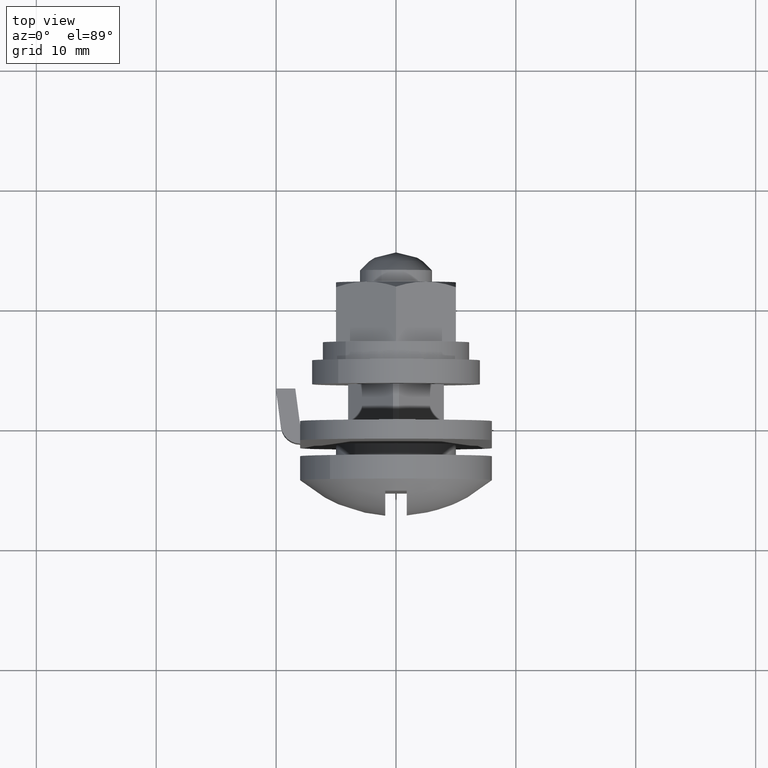
[diagram: clean part render]
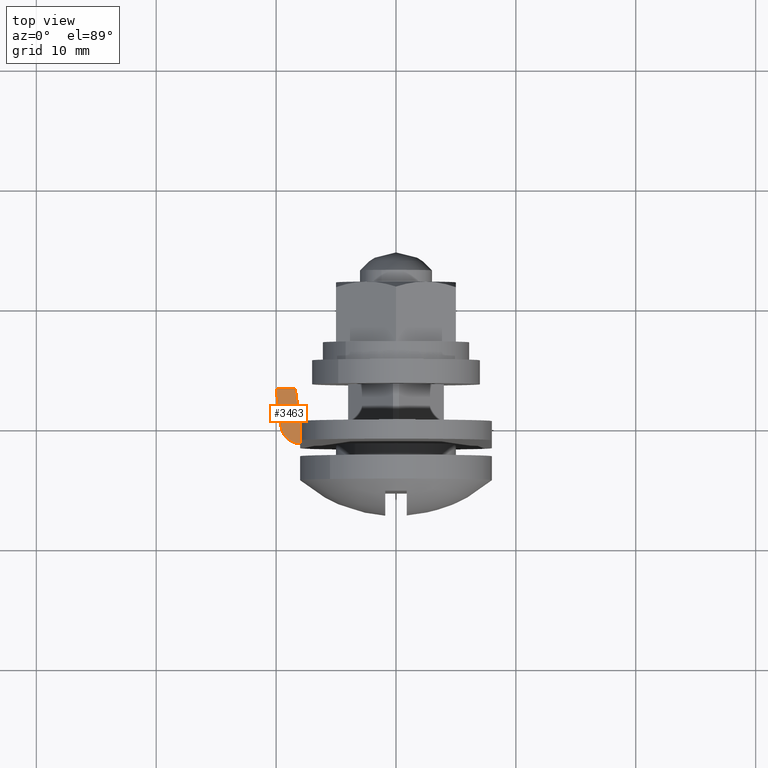
[diagram: same view with one face highlighted and labeled with its STEP entity id]
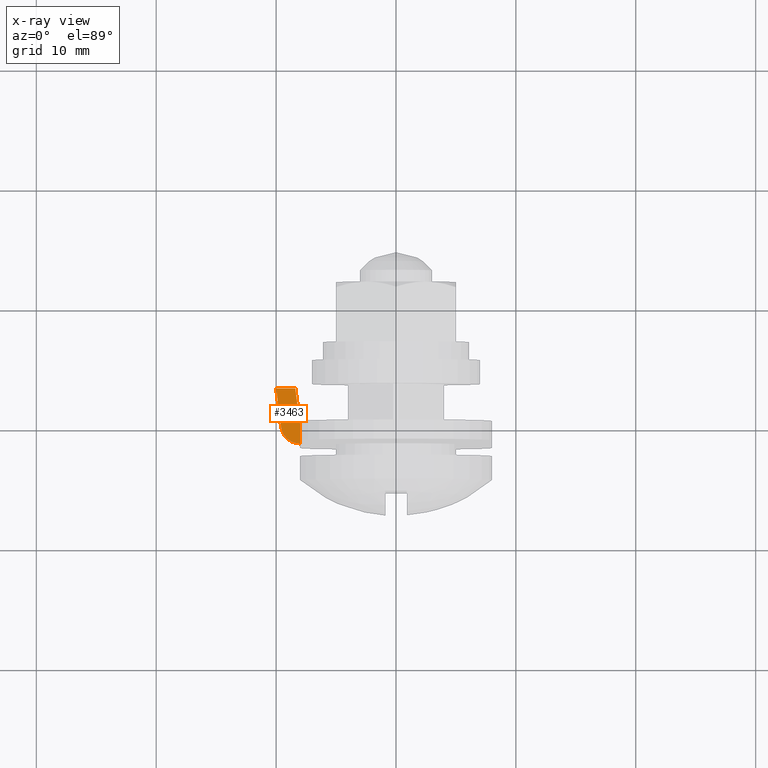
[diagram: x-ray of the same camera — body ghosted, the highlighted face saturated]
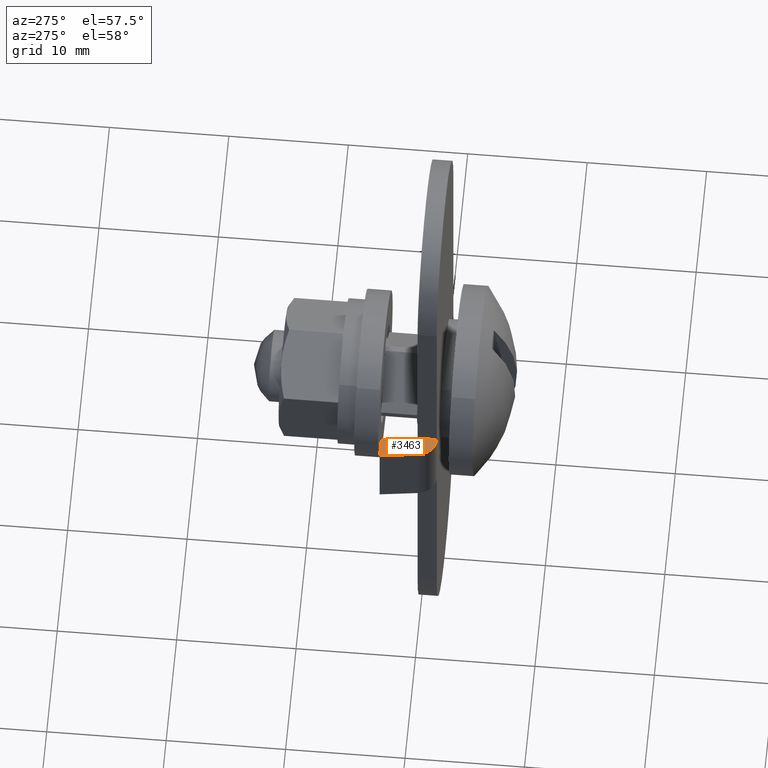
[diagram: same view with one face highlighted and labeled with its STEP entity id]
A machine part, top view. The second image highlights one B-rep face of the part: STEP entity #3463.
The next image is the same camera in x-ray: the body ghosted, the highlighted face saturated — about 0% of this face is hidden behind the body in this view.
A second angle (auxiliary view) of the same face is appended — the face is thin or edge-on in the first view.
In plain terms, the highlighted face is a freeform B-spline surface patch.
Its self-contained STEP definition (entity closure, byte-faithful):
#3414=CARTESIAN_POINT('',(-10.099899996123609,-1.829774278946591,3.0));
#3415=CARTESIAN_POINT('',(-7.900099950232208,-1.829774278946591,3.0));
#3416=CARTESIAN_POINT('',(-10.099899996123609,3.229770318455473,3.0));
#3417=CARTESIAN_POINT('',(-7.900099950232208,3.229770318455473,3.0));
#3418=B_SPLINE_SURFACE_WITH_KNOTS('',1,1,((#3414,#3416),(#3415,#3417)),.UNSPECIFIED.,.F.,.F.,.U.,(2,2),(2,2),(0.0,2.199800045891403),(0.0,5.059544597402065),.UNSPECIFIED.);
#3419=CARTESIAN_POINT('',(-9.586867277870271,-0.204578206132975,3.0));
#3420=VERTEX_POINT('',#3419);
#3421=CARTESIAN_POINT('',(-10.0,3.0,3.0));
#3422=VERTEX_POINT('',#3421);
#3423=CARTESIAN_POINT('',(-9.586867277870271,-0.204578206132975,3.0));
#3424=CARTESIAN_POINT('',(-10.0,3.0,3.0));
#3425=QUASI_UNIFORM_CURVE('',1,(#3423,#3424),.UNSPECIFIED.,.F.,.U.);
#3426=EDGE_CURVE('',#3420,#3422,#3425,.T.);
#3427=ORIENTED_EDGE('',*,*,#3426,.F.);
#3428=CARTESIAN_POINT('',(-8.0,-1.600004125000085,3.0));
#3429=VERTEX_POINT('',#3428);
#3430=CARTESIAN_POINT('',(-9.586867277870271,-0.204578206132975,3.0));
#3431=CARTESIAN_POINT('',(-9.566953281561156,-0.359589090497325,2.999999999999999));
#3432=CARTESIAN_POINT('',(-9.491022679725369,-0.628544498606450,3.0));
#3433=CARTESIAN_POINT('',(-9.275554269501662,-0.993060559528498,2.999999999999997));
#3434=CARTESIAN_POINT('',(-9.001999854975544,-1.268521695400263,3.000000000000006));
#3435=CARTESIAN_POINT('',(-8.670133183435954,-1.467886770933523,2.999999999999989));
#3436=CARTESIAN_POINT('',(-8.336600474465611,-1.576753670052306,3.000000000000035));
#3437=CARTESIAN_POINT('',(-8.108193150470292,-1.600018611005220,2.999999999999977));
#3438=CARTESIAN_POINT('',(-8.0,-1.600004125000085,3.0));
#3439=B_SPLINE_CURVE_WITH_KNOTS('',3,(#3430,#3431,#3432,#3433,#3434,#3435,#3436,#3437,#3438),.UNSPECIFIED.,.F.,.U.,(4,1,1,1,1,1,4),(0.000000058569539,0.468845914129515,0.829507329329176,1.262271806914762,1.622938742820413,1.983600158020199,2.308185715951479),.UNSPECIFIED.);
#3440=EDGE_CURVE('',#3420,#3429,#3439,.T.);
#3441=ORIENTED_EDGE('',*,*,#3440,.T.);
#3442=CARTESIAN_POINT('',(-8.0,0.000026249934202,3.0));
#3443=VERTEX_POINT('',#3442);
#3444=CARTESIAN_POINT('',(-8.0,0.000026249934202,3.0));
#3445=CARTESIAN_POINT('',(-8.0,-1.600004125000085,3.0));
#3446=QUASI_UNIFORM_CURVE('',1,(#3444,#3445),.UNSPECIFIED.,.F.,.U.);
#3447=EDGE_CURVE('',#3443,#3429,#3446,.T.);
#3448=ORIENTED_EDGE('',*,*,#3447,.F.);
#3449=CARTESIAN_POINT('',(-8.400002000000001,3.0,3.0));
#3450=VERTEX_POINT('',#3449);
#3451=CARTESIAN_POINT('',(-8.400002000000001,3.0,3.0));
#3452=CARTESIAN_POINT('',(-8.0,0.000026249934202,3.0));
#3453=QUASI_UNIFORM_CURVE('',1,(#3451,#3452),.UNSPECIFIED.,.F.,.U.);
#3454=EDGE_CURVE('',#3450,#3443,#3453,.T.);
#3455=ORIENTED_EDGE('',*,*,#3454,.F.);
#3456=CARTESIAN_POINT('',(-10.0,3.0,3.0));
#3457=CARTESIAN_POINT('',(-8.400002000000001,3.0,3.0));
#3458=QUASI_UNIFORM_CURVE('',1,(#3456,#3457),.UNSPECIFIED.,.F.,.U.);
#3459=EDGE_CURVE('',#3422,#3450,#3458,.T.);
#3460=ORIENTED_EDGE('',*,*,#3459,.F.);
#3461=EDGE_LOOP('',(#3427,#3441,#3448,#3455,#3460));
#3462=FACE_OUTER_BOUND('',#3461,.T.);
#3463=ADVANCED_FACE('',(#3462),#3418,.T.);